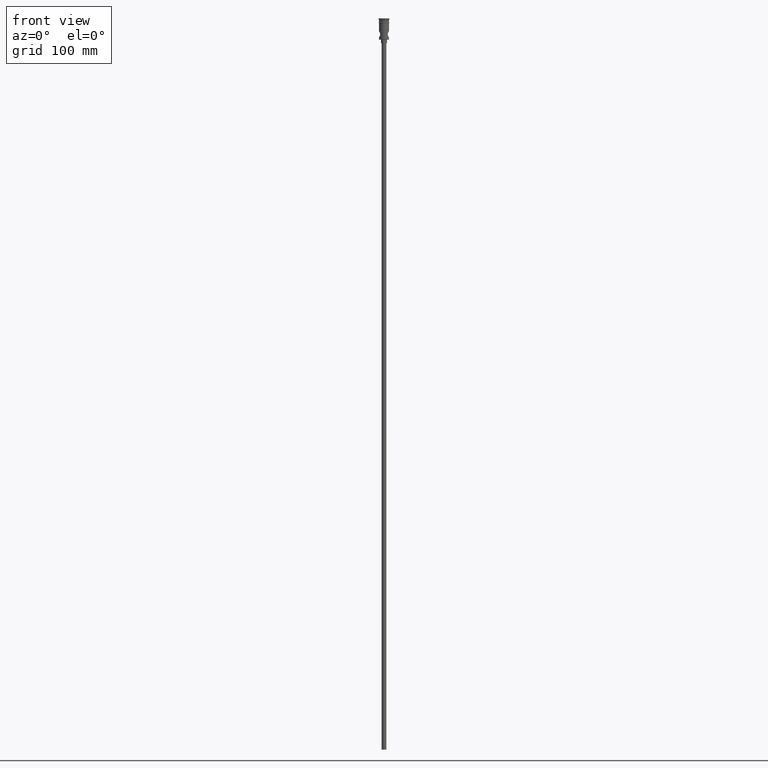
[diagram: clean part render]
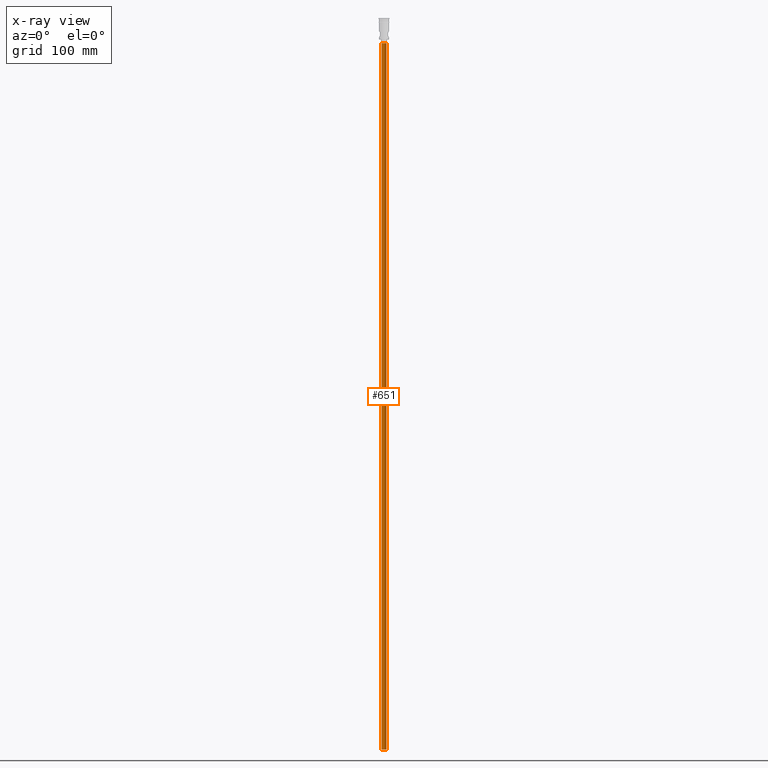
[diagram: x-ray — body ghosted, one internal face saturated and labeled with its STEP entity id]
A machine part, front view, then the same camera in x-ray: the body is ghosted and one INTERNAL B-rep face — a face not visible from any outside direction — is saturated and labeled: STEP entity #651.
In plain terms, the highlighted cylindrical surface (edge-blend (fillet) strip) has radius 2 mm, axis along (-0, -0, 1).
Its self-contained STEP definition (entity closure, byte-faithful):
#18 = CARTESIAN_POINT ( 'NONE',  ( 2.000000000000000000, 0.000000000000000000, -618.0000000000000000 ) ) ;
#114 = CARTESIAN_POINT ( 'NONE',  ( -2.000000000000000000, 2.449293598294706414E-16, -618.0000000000000000 ) ) ;
#128 = LINE ( 'NONE', #18, #237 ) ;
#200 = DIRECTION ( 'NONE',  ( -1.000000000000000000, 0.000000000000000000, 0.000000000000000000 ) ) ;
#235 = CARTESIAN_POINT ( 'NONE',  ( -2.000000000000000000, 2.449293598294706414E-16, -618.0000000000000000 ) ) ;
#237 = VECTOR ( 'NONE', #662, 1000.000000000000000 ) ;
#239 = DIRECTION ( 'NONE',  ( -0.000000000000000000, -0.000000000000000000, 1.000000000000000000 ) ) ;
#354 = EDGE_CURVE ( 'NONE', #723, #1375, #966, .T. ) ;
#368 = CIRCLE ( 'NONE', #572, 2.000000000000000000 ) ;
#378 = DIRECTION ( 'NONE',  ( 0.000000000000000000, 0.000000000000000000, -1.000000000000000000 ) ) ;
#483 = ORIENTED_EDGE ( 'NONE', *, *, #938, .F. ) ;
#484 = CYLINDRICAL_SURFACE ( 'NONE', #570, 2.000000000000000000 ) ;
#499 = VERTEX_POINT ( 'NONE', #1114 ) ;
#508 = DIRECTION ( 'NONE',  ( -1.000000000000000000, 0.000000000000000000, 0.000000000000000000 ) ) ;
#526 = DIRECTION ( 'NONE',  ( 0.000000000000000000, 0.000000000000000000, -1.000000000000000000 ) ) ;
#539 = CARTESIAN_POINT ( 'NONE',  ( 0.000000000000000000, 0.000000000000000000, -618.0000000000000000 ) ) ;
#570 = AXIS2_PLACEMENT_3D ( 'NONE', #925, #239, #1116 ) ;
#572 = AXIS2_PLACEMENT_3D ( 'NONE', #1058, #378, #508 ) ;
#614 = VECTOR ( 'NONE', #1379, 1000.000000000000000 ) ;
#651 = ADVANCED_FACE ( 'NONE', ( #1031 ), #484, .T. ) ;
#662 = DIRECTION ( 'NONE',  ( -0.000000000000000000, -0.000000000000000000, 1.000000000000000000 ) ) ;
#723 = VERTEX_POINT ( 'NONE', #235 ) ;
#775 = AXIS2_PLACEMENT_3D ( 'NONE', #539, #526, #200 ) ;
#925 = CARTESIAN_POINT ( 'NONE',  ( 0.000000000000000000, 0.000000000000000000, -618.0000000000000000 ) ) ;
#937 = ORIENTED_EDGE ( 'NONE', *, *, #1158, .F. ) ;
#938 = EDGE_CURVE ( 'NONE', #1085, #499, #128, .T. ) ;
#946 = ORIENTED_EDGE ( 'NONE', *, *, #1000, .T. ) ;
#966 = LINE ( 'NONE', #114, #614 ) ;
#1000 = EDGE_CURVE ( 'NONE', #1375, #499, #368, .T. ) ;
#1031 = FACE_OUTER_BOUND ( 'NONE', #1139, .T. ) ;
#1058 = CARTESIAN_POINT ( 'NONE',  ( 0.000000000000000000, 0.000000000000000000, -20.99999999999999645 ) ) ;
#1085 = VERTEX_POINT ( 'NONE', #1414 ) ;
#1114 = CARTESIAN_POINT ( 'NONE',  ( 2.000000000000000000, 0.000000000000000000, -20.99999999999999645 ) ) ;
#1116 = DIRECTION ( 'NONE',  ( 1.000000000000000000, 0.000000000000000000, 0.000000000000000000 ) ) ;
#1139 = EDGE_LOOP ( 'NONE', ( #937, #1142, #946, #483 ) ) ;
#1142 = ORIENTED_EDGE ( 'NONE', *, *, #354, .T. ) ;
#1158 = EDGE_CURVE ( 'NONE', #723, #1085, #1430, .T. ) ;
#1239 = CARTESIAN_POINT ( 'NONE',  ( -2.000000000000000000, 2.449293598294706414E-16, -20.99999999999999645 ) ) ;
#1375 = VERTEX_POINT ( 'NONE', #1239 ) ;
#1379 = DIRECTION ( 'NONE',  ( -0.000000000000000000, -0.000000000000000000, 1.000000000000000000 ) ) ;
#1414 = CARTESIAN_POINT ( 'NONE',  ( 2.000000000000000000, 0.000000000000000000, -618.0000000000000000 ) ) ;
#1430 = CIRCLE ( 'NONE', #775, 2.000000000000000000 ) ;